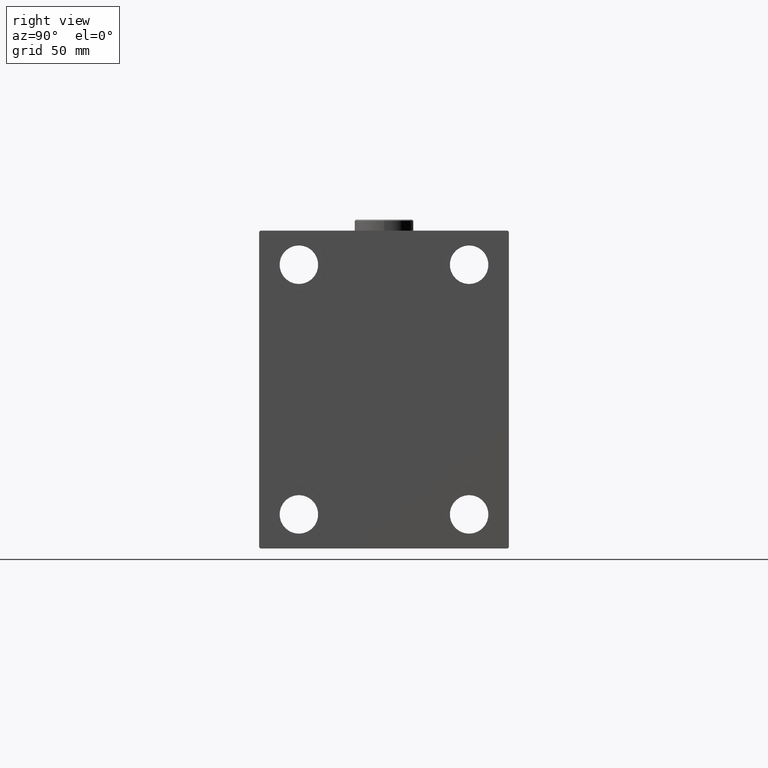
[diagram: clean part render]
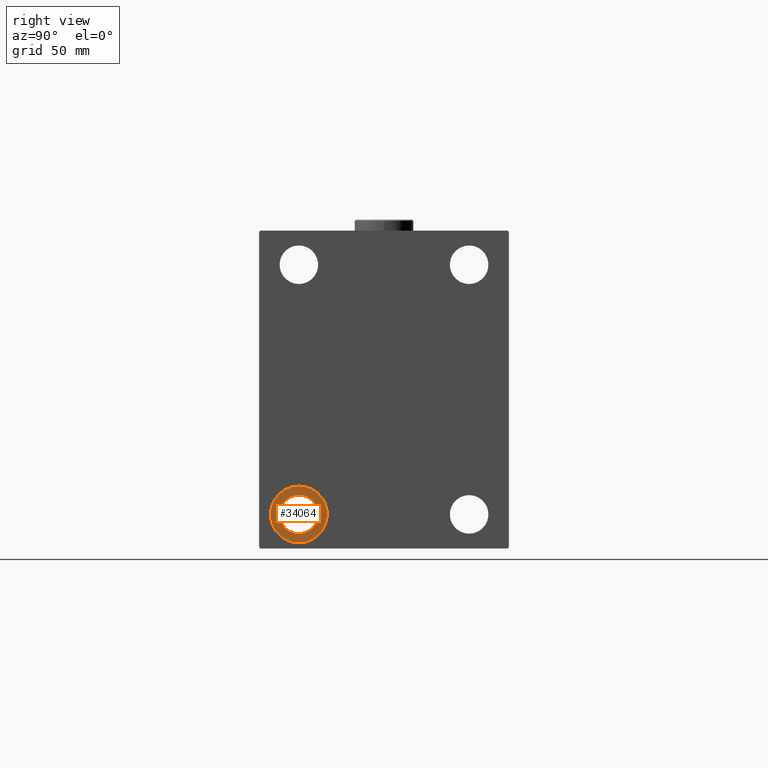
[diagram: same view with one face highlighted and labeled with its STEP entity id]
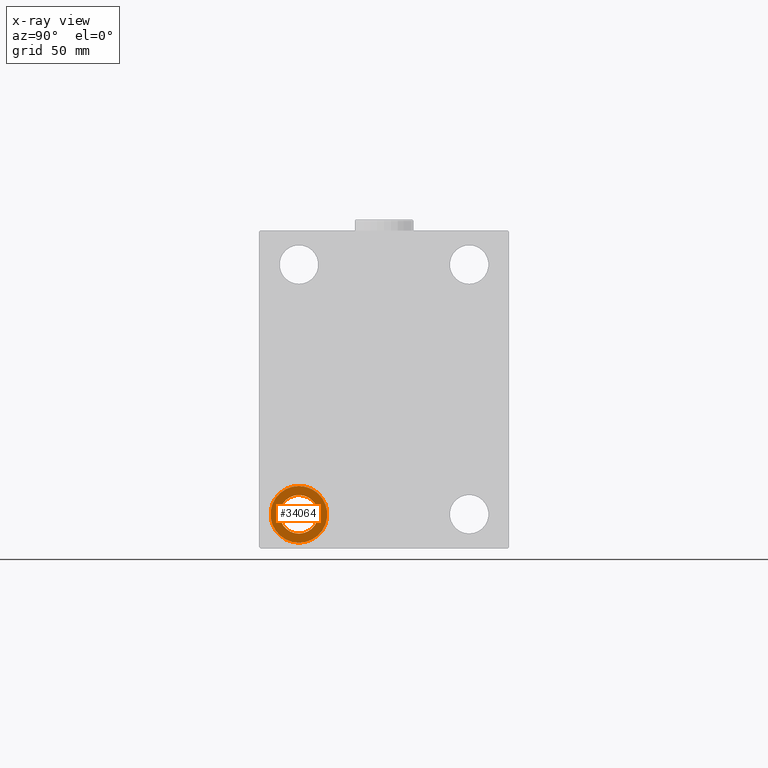
[diagram: x-ray of the same camera — body ghosted, the highlighted face saturated]
A machine part, right view. The second image highlights one B-rep face of the part: STEP entity #34064.
The next image is the same camera in x-ray: the body ghosted, the highlighted face saturated — about 0% of this face is hidden behind the body in this view.
In plain terms, the highlighted planar face has unit normal (1, 0, 0).
Its self-contained STEP definition (entity closure, byte-faithful):
#317 = VERTEX_POINT ( 'NONE', #22926 ) ;
#916 = CIRCLE ( 'NONE', #41928, 12.49999999999999645 ) ;
#1824 = FACE_BOUND ( 'NONE', #15409, .T. ) ;
#2346 = DIRECTION ( 'NONE',  ( -1.000000000000000000, -0.000000000000000000, -0.000000000000000000 ) ) ;
#3194 = CARTESIAN_POINT ( 'NONE',  ( 176.0000000000000000, -37.50000000000002132, -54.99999999999999289 ) ) ;
#4067 = CARTESIAN_POINT ( 'NONE',  ( 176.0000000000000000, -37.50000000000002132, -54.99999999999999289 ) ) ;
#4366 = CARTESIAN_POINT ( 'NONE',  ( 176.0000000000000000, -37.50000000000002132, -46.50000000000000000 ) ) ;
#5932 = VERTEX_POINT ( 'NONE', #4366 ) ;
#7174 = VERTEX_POINT ( 'NONE', #43524 ) ;
#7412 = AXIS2_PLACEMENT_3D ( 'NONE', #3194, #32190, #46715 ) ;
#7710 = DIRECTION ( 'NONE',  ( 0.000000000000000000, 0.000000000000000000, 1.000000000000000000 ) ) ;
#8461 = EDGE_CURVE ( 'NONE', #7174, #317, #916, .T. ) ;
#8656 = CARTESIAN_POINT ( 'NONE',  ( 176.0000000000000000, -37.50000000000002132, -54.99999999999999289 ) ) ;
#12335 = CARTESIAN_POINT ( 'NONE',  ( 176.0000000000000000, -37.50000000000002132, -63.49999999999998579 ) ) ;
#12766 = DIRECTION ( 'NONE',  ( 0.000000000000000000, 0.000000000000000000, 1.000000000000000000 ) ) ;
#13945 = EDGE_CURVE ( 'NONE', #44294, #5932, #30534, .T. ) ;
#13994 = CARTESIAN_POINT ( 'NONE',  ( 176.0000000000000000, -37.50000000000002132, -54.99999999999999289 ) ) ;
#14910 = ORIENTED_EDGE ( 'NONE', *, *, #25699, .F. ) ;
#15007 = DIRECTION ( 'NONE',  ( -1.000000000000000000, -0.000000000000000000, -0.000000000000000000 ) ) ;
#15409 = EDGE_LOOP ( 'NONE', ( #24955, #29249 ) ) ;
#16119 = AXIS2_PLACEMENT_3D ( 'NONE', #13994, #2346, #39207 ) ;
#16328 = PLANE ( 'NONE',  #25828 ) ;
#22926 = CARTESIAN_POINT ( 'NONE',  ( 176.0000000000000000, -37.50000000000002132, -67.49999999999998579 ) ) ;
#24846 = CIRCLE ( 'NONE', #7412, 8.499999999999992895 ) ;
#24955 = ORIENTED_EDGE ( 'NONE', *, *, #26492, .T. ) ;
#25699 = EDGE_CURVE ( 'NONE', #317, #7174, #44597, .T. ) ;
#25828 = AXIS2_PLACEMENT_3D ( 'NONE', #30825, #45346, #12766 ) ;
#26476 = DIRECTION ( 'NONE',  ( -1.000000000000000000, -0.000000000000000000, -0.000000000000000000 ) ) ;
#26492 = EDGE_CURVE ( 'NONE', #5932, #44294, #24846, .T. ) ;
#29249 = ORIENTED_EDGE ( 'NONE', *, *, #13945, .T. ) ;
#30534 = CIRCLE ( 'NONE', #16119, 8.499999999999992895 ) ;
#30825 = CARTESIAN_POINT ( 'NONE',  ( 176.0000000000000000, 0.000000000000000000, 0.000000000000000000 ) ) ;
#32190 = DIRECTION ( 'NONE',  ( -1.000000000000000000, -0.000000000000000000, -0.000000000000000000 ) ) ;
#34064 = ADVANCED_FACE ( 'NONE', ( #34397, #1824 ), #16328, .T. ) ;
#34289 = ORIENTED_EDGE ( 'NONE', *, *, #8461, .F. ) ;
#34397 = FACE_OUTER_BOUND ( 'NONE', #38147, .T. ) ;
#36991 = AXIS2_PLACEMENT_3D ( 'NONE', #4067, #15007, #40918 ) ;
#38147 = EDGE_LOOP ( 'NONE', ( #14910, #34289 ) ) ;
#39207 = DIRECTION ( 'NONE',  ( 0.000000000000000000, 0.000000000000000000, -1.000000000000000000 ) ) ;
#40918 = DIRECTION ( 'NONE',  ( 0.000000000000000000, 0.000000000000000000, 1.000000000000000000 ) ) ;
#41928 = AXIS2_PLACEMENT_3D ( 'NONE', #8656, #26476, #7710 ) ;
#43524 = CARTESIAN_POINT ( 'NONE',  ( 176.0000000000000000, -37.50000000000002132, -42.49999999999999289 ) ) ;
#44294 = VERTEX_POINT ( 'NONE', #12335 ) ;
#44597 = CIRCLE ( 'NONE', #36991, 12.49999999999999645 ) ;
#45346 = DIRECTION ( 'NONE',  ( 1.000000000000000000, 0.000000000000000000, -0.000000000000000000 ) ) ;
#46715 = DIRECTION ( 'NONE',  ( 0.000000000000000000, 0.000000000000000000, -1.000000000000000000 ) ) ;